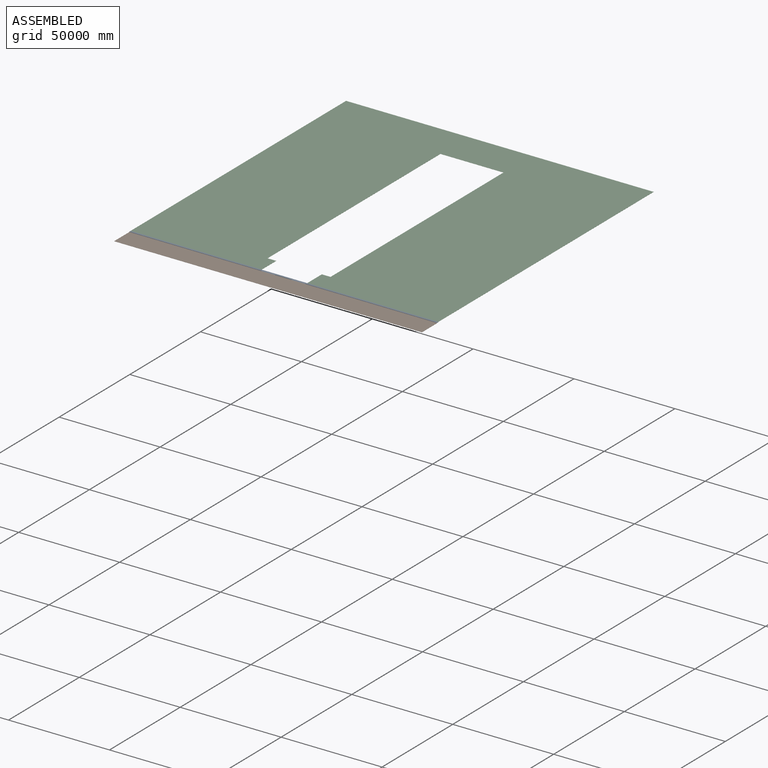
[diagram: assembled view]
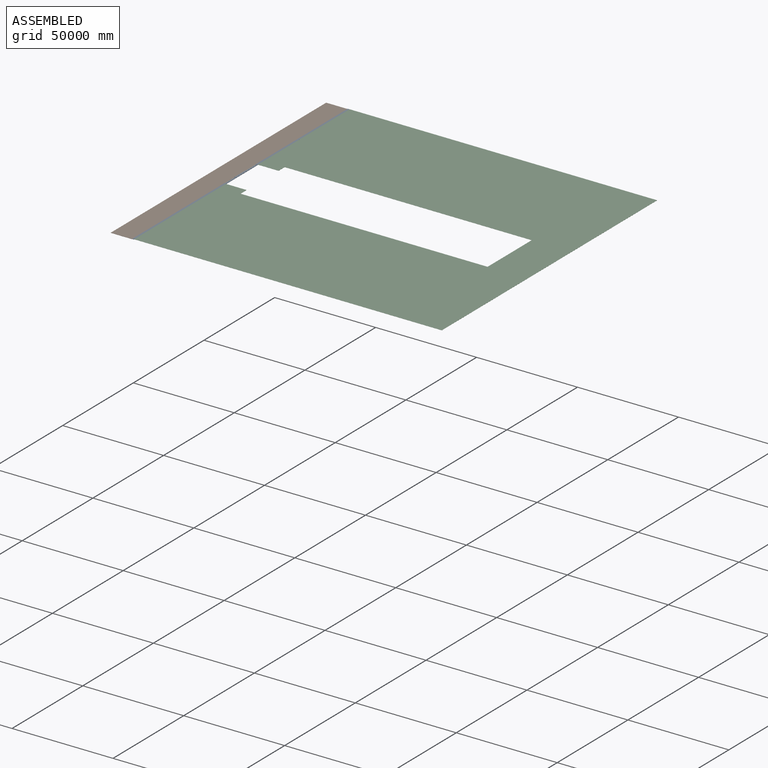
[diagram: assembled view, second angle]
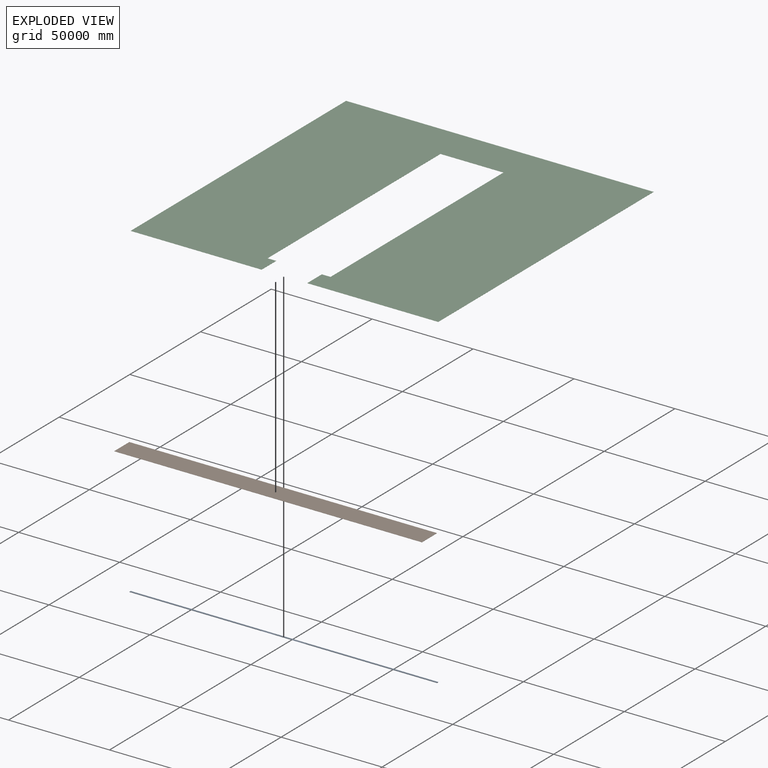
[diagram: exploded view]
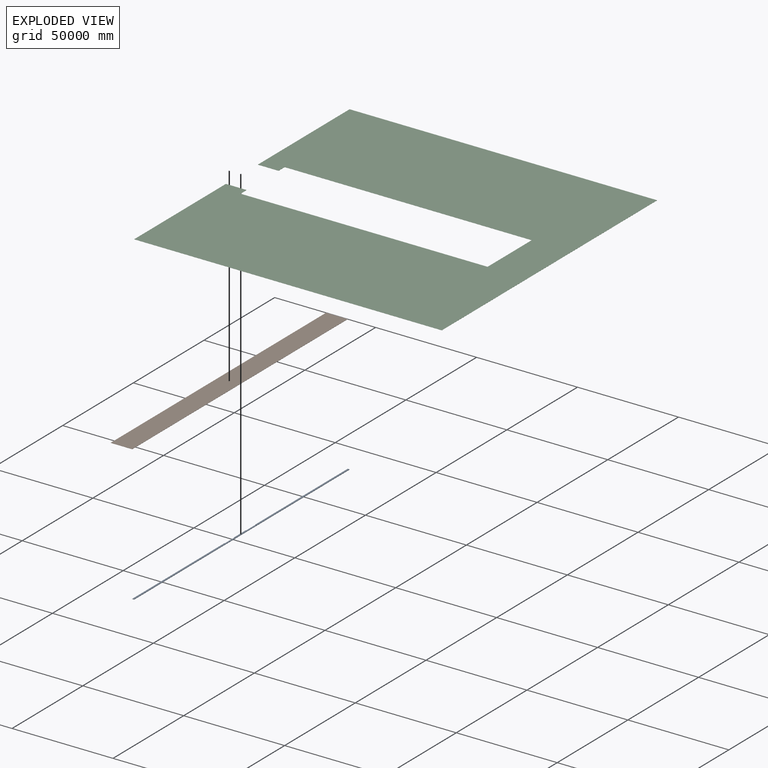
[diagram: exploded view, second angle]
ASSEMBLY  parts=3 mates=2
PART A: 16 faces, bbox 152400x914.4x152.4 mm
  f0: plane 65227.2x152.4mm, normal (0,-1,0), area 9940625.3mm2, adj f5,f8,f9,f15
  f1: plane 7924.8x914.4mm, normal (0,0,1), area 7246437.1mm2, adj f2,f4,f11,f14
  f2: plane 7924.8x152.4mm, normal (0,-1,0), area 1207739.5mm2, adj f1,f9,f11,f14
  f3: plane 65227.2x914.4mm, normal (0,0,1), area 59643751.7mm2, adj f4,f6,f7,f12
  f4: plane 152400x152.4mm, normal (0,1,0), area 23225760mm2, adj f1,f3,f5,f7,f8,f9,f10,f13
  f5: plane 914.4x152.4mm, normal (-1,0,0), area 139354.6mm2, adj f0,f4,f8,f9
  f6: plane 65227.2x152.4mm, normal (0,-1,0), area 9940625.3mm2, adj f3,f7,f9,f12
  f7: plane 914.4x152.4mm, normal (1,0,0), area 139354.6mm2, adj f3,f4,f6,f9
  f8: plane 65227.2x914.4mm, normal (0,0,1), area 59643751.7mm2, adj f0,f4,f5,f15
  f9: plane 152400x914.4mm, normal (0,0,-1), area 139354560mm2, adj f0,f2,f4,f5,f6,f7,f10,f13
  f10: plane 7010.4x914.4mm, normal (0,-0.16,0.99), area 6498732mm2, adj f4,f9,f11,f12
  f11: plane 914.4x152.4mm, normal (1,0,0), area 69677.3mm2, adj f1,f2,f10
  f12: plane 914.4x152.4mm, normal (-1,0,0), area 69677.3mm2, adj f3,f6,f10
  f13: plane 7010.4x914.4mm, normal (0,-0.16,0.99), area 6498732mm2, adj f4,f9,f14,f15
  f14: plane 914.4x152.4mm, normal (-1,0,0), area 69677.3mm2, adj f1,f2,f13
  f15: plane 914.4x152.4mm, normal (1,0,0), area 69677.3mm2, adj f0,f8,f13
PART B: 6 faces, bbox 152400x10668x76.2 mm
  f0: plane 152400x76.2mm, normal (0,1,0), area 11612880mm2, adj f1,f3,f4,f5
  f1: plane 10668x76.2mm, normal (-1,0,0), area 812901.6mm2, adj f0,f2,f4,f5
  f2: plane 152400x76.2mm, normal (0,-1,0), area 11612880mm2, adj f1,f3,f4,f5
  f3: plane 10668x76.2mm, normal (1,0,0), area 812901.6mm2, adj f0,f2,f4,f5
  f4: plane 152400x10668mm, normal (0,0,1), area 1625803200mm2, adj f0,f1,f2,f3
  f5: plane 152400x10668mm, normal (0,0,-1), area 1625803200mm2, adj f0,f1,f2,f3
PART C: 14 faces, bbox 152400x152400x25.4 mm
  f0: plane 152400x152400mm, normal (0,0,1), area 19177654547.8mm2, adj f1,f3,f4,f5,f6,f7,f8,f9
  f1: plane 64922.4x25.4mm, normal (0,-1,0), area 1649029mm2, adj f0,f2,f4,f7
  f2: plane 152400x152400mm, normal (0,0,-1), area 19177654547.8mm2, adj f1,f3,f4,f5,f6,f7,f8,f9
  f3: plane 152400x25.4mm, normal (0,1,0), area 3870960mm2, adj f0,f2,f4,f6
  f4: plane 152400x25.4mm, normal (-1,0,0), area 3870960mm2, adj f0,f1,f2,f3
  f5: plane 64922.4x25.4mm, normal (0,-1,0), area 1649029mm2, adj f0,f2,f6,f8
  f6: plane 152400x25.4mm, normal (1,0,0), area 3870960mm2, adj f0,f2,f3,f5
  f7: plane 10312.4x25.4mm, normal (1,0,0), area 261935mm2, adj f0,f1,f2,f9
  f8: plane 10312.4x25.4mm, normal (-1,0,0), area 261935mm2, adj f0,f2,f5,f11
  f9: plane 4318x25.4mm, normal (0,1,0), area 109677.2mm2, adj f0,f2,f7,f10
  f10: plane 122326.4x25.4mm, normal (1,0,0), area 3107090.6mm2, adj f0,f2,f9,f13
  f11: plane 4318x25.4mm, normal (0,1,0), area 109677.2mm2, adj f0,f2,f8,f12
  f12: plane 122326.4x25.4mm, normal (-1,0,0), area 3107090.6mm2, adj f0,f2,f11,f13
  f13: plane 31191.2x25.4mm, normal (0,-1,0), area 792256.5mm2, adj f0,f2,f10,f12
PLACE A t=(0,-76657.2,-127)mm
PLACE B t=(0,-82448.4,-203.2)mm
PLACE C at identity fixed
MATE fastened A.f8 <-> C.f0  axis (0,0,1) through (-76200,-76200,25.4)mm
MATE fastened B.f4 <-> A.f9  axis (0,0,1) through (-76200,-77114.4,-127)mm
